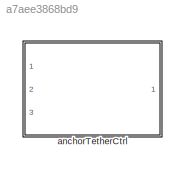
MODEL slx_a7aee3868bd9
KIND library
CONFIG AbsTol = auto
CONFIG EnableMultiTasking = off
CONFIG FixedStep = auto
CONFIG MaxStep = auto
CONFIG MinStep = auto
CONFIG RelTol = 1e-3
CONFIG SampleTimeConstraint = Unconstrained
CONFIG SolverName = VariableStepAuto
CONFIG StartTime = 0.0
CONFIG StopTime = 10.0
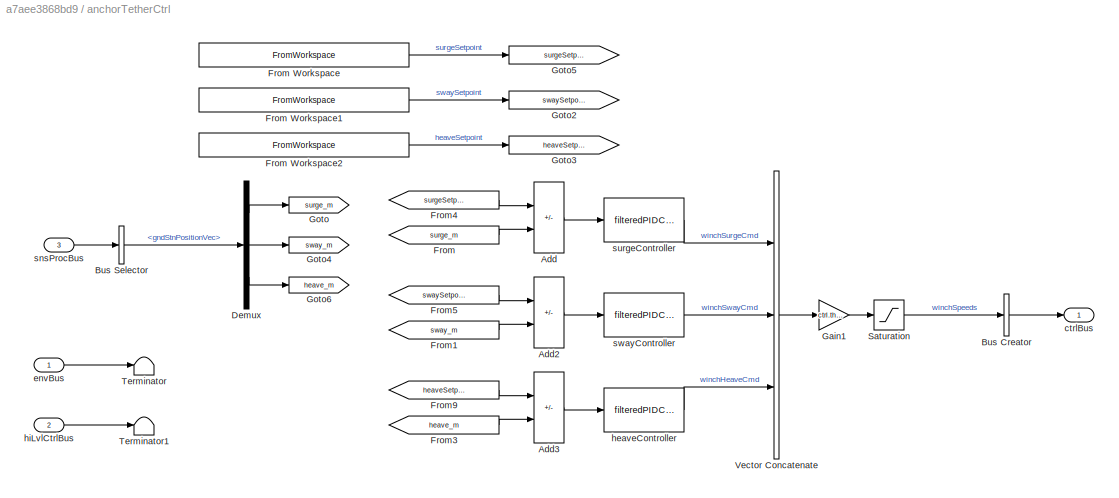
BLOCK [SubSystem] anchorTetherCtrl
  InitFcn = initializeBussesFromBlock(gcb)
  LoadFcn = initializeBussesFromBlock(gcb)
  Ports = [3, 1]
  RequestExecContextInheritance = off
  StartFcn = initializeBussesFromBlock(gcb)
BLOCK [Sum] anchorTetherCtrl/Add
  IconShape = rectangular
  Inputs = +-
  Ports = [2, 1]
BLOCK [Sum] anchorTetherCtrl/Add2
  IconShape = rectangular
  Inputs = +-
  Ports = [2, 1]
BLOCK [Sum] anchorTetherCtrl/Add3
  IconShape = rectangular
  Inputs = +-
  Ports = [2, 1]
BLOCK [BusCreator] anchorTetherCtrl/Bus Creator
  DisplayOption = bar
  InheritFromInputs = on
  Inputs = 1
  OutDataTypeStr = Bus: gndStnCtrlBus
  Ports = [1, 1]
BLOCK [BusSelector] anchorTetherCtrl/Bus Selector
  OutputSignals = gndStnPositionVec
  Ports = [1, 1]
BLOCK [Demux] anchorTetherCtrl/Demux
  Outputs = 3
  Ports = [1, 3]
BLOCK [From] anchorTetherCtrl/From
  GotoTag = surge_m
BLOCK [FromWorkspace] anchorTetherCtrl/From Workspace
  VariableName = ctrl.surgeSP.Value
BLOCK [FromWorkspace] anchorTetherCtrl/From Workspace1
  VariableName = ctrl.swaySP.Value
BLOCK [FromWorkspace] anchorTetherCtrl/From Workspace2
  VariableName = ctrl.heaveSP.Value
BLOCK [From] anchorTetherCtrl/From1
  GotoTag = sway_m
BLOCK [From] anchorTetherCtrl/From3
  GotoTag = heave_m
BLOCK [From] anchorTetherCtrl/From4
  GotoTag = surgeSetpoint_m
BLOCK [From] anchorTetherCtrl/From5
  GotoTag = swaySetpoint_m
BLOCK [From] anchorTetherCtrl/From9
  GotoTag = heaveSetpoint_m
BLOCK [Gain] anchorTetherCtrl/Gain1
  Gain = ctrl.thrAllocationMat.Value
  Multiplication = Matrix(K*u)
BLOCK [Goto] anchorTetherCtrl/Goto
  GotoTag = surge_m
BLOCK [Goto] anchorTetherCtrl/Goto2
  GotoTag = swaySetpoint_m
BLOCK [Goto] anchorTetherCtrl/Goto3
  GotoTag = heaveSetpoint_m
BLOCK [Goto] anchorTetherCtrl/Goto4
  GotoTag = sway_m
BLOCK [Goto] anchorTetherCtrl/Goto5
  GotoTag = surgeSetpoint_m
BLOCK [Goto] anchorTetherCtrl/Goto6
  GotoTag = heave_m
BLOCK [Saturate] anchorTetherCtrl/Saturation
  LowerLimit = ctrl.outputSat.lowerLimit.Value
  UpperLimit = ctrl.outputSat.upperLimit.Value
BLOCK [Terminator] anchorTetherCtrl/Terminator
BLOCK [Terminator] anchorTetherCtrl/Terminator1
BLOCK [Concatenate] anchorTetherCtrl/Vector Concatenate
  NumInputs = 3
  Ports = [3, 1]
BLOCK [Outport] anchorTetherCtrl/ctrlBus
  OutDataTypeStr = Bus: gndStnCtrlBus
  VectorParamsAs1DForOutWhenUnconnected = off
BLOCK [Inport] anchorTetherCtrl/envBus
  OutDataTypeStr = Bus: envBus
BLOCK [Reference] anchorTetherCtrl/heaveController  REF=filteredPIDController_ul/filteredPIDController
  Ports = [1, 1]
  SourceBlock = filteredPIDController_ul/filteredPIDController
BLOCK [Inport] anchorTetherCtrl/hiLvlCtrlBus
  OutDataTypeStr = Bus: hiLvlCtrlBus
  Port = 2
BLOCK [Inport] anchorTetherCtrl/snsProcBus
  OutDataTypeStr = Bus: sensorsProcessingBus
  Port = 3
BLOCK [Reference] anchorTetherCtrl/surgeController  REF=filteredPIDController_ul/filteredPIDController
  Ports = [1, 1]
  SourceBlock = filteredPIDController_ul/filteredPIDController
BLOCK [Reference] anchorTetherCtrl/swayController  REF=filteredPIDController_ul/filteredPIDController
  Ports = [1, 1]
  SourceBlock = filteredPIDController_ul/filteredPIDController
LINE anchorTetherCtrl/Add2:1 -> anchorTetherCtrl/swayController:1
LINE anchorTetherCtrl/Add3:1 -> anchorTetherCtrl/heaveController:1
LINE anchorTetherCtrl/Add:1 -> anchorTetherCtrl/surgeController:1
LINE anchorTetherCtrl/Bus Creator:1 -> anchorTetherCtrl/ctrlBus:1
LINE anchorTetherCtrl/Bus Selector:1 -> anchorTetherCtrl/Demux:1
LINE anchorTetherCtrl/Demux:1 -> anchorTetherCtrl/Goto:1
LINE anchorTetherCtrl/Demux:2 -> anchorTetherCtrl/Goto4:1
LINE anchorTetherCtrl/Demux:3 -> anchorTetherCtrl/Goto6:1
LINE anchorTetherCtrl/From Workspace1:1 -> anchorTetherCtrl/Goto2:1
LINE anchorTetherCtrl/From Workspace2:1 -> anchorTetherCtrl/Goto3:1
LINE anchorTetherCtrl/From Workspace:1 -> anchorTetherCtrl/Goto5:1
LINE anchorTetherCtrl/From1:1 -> anchorTetherCtrl/Add2:2
LINE anchorTetherCtrl/From3:1 -> anchorTetherCtrl/Add3:2
LINE anchorTetherCtrl/From4:1 -> anchorTetherCtrl/Add:1
LINE anchorTetherCtrl/From5:1 -> anchorTetherCtrl/Add2:1
LINE anchorTetherCtrl/From9:1 -> anchorTetherCtrl/Add3:1
LINE anchorTetherCtrl/From:1 -> anchorTetherCtrl/Add:2
LINE anchorTetherCtrl/Gain1:1 -> anchorTetherCtrl/Saturation:1
LINE anchorTetherCtrl/Saturation:1 -> anchorTetherCtrl/Bus Creator:1
LINE anchorTetherCtrl/Vector Concatenate:1 -> anchorTetherCtrl/Gain1:1
LINE anchorTetherCtrl/envBus:1 -> anchorTetherCtrl/Terminator:1
LINE anchorTetherCtrl/heaveController:1 -> anchorTetherCtrl/Vector Concatenate:3
LINE anchorTetherCtrl/hiLvlCtrlBus:1 -> anchorTetherCtrl/Terminator1:1
LINE anchorTetherCtrl/snsProcBus:1 -> anchorTetherCtrl/Bus Selector:1
LINE anchorTetherCtrl/surgeController:1 -> anchorTetherCtrl/Vector Concatenate:1
LINE anchorTetherCtrl/swayController:1 -> anchorTetherCtrl/Vector Concatenate:2
